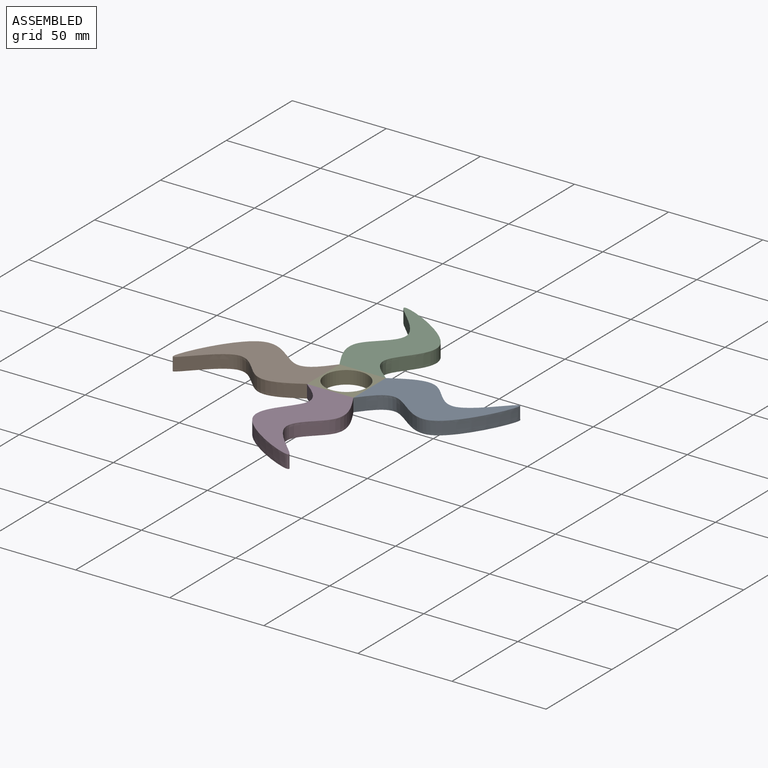
[diagram: assembled view]
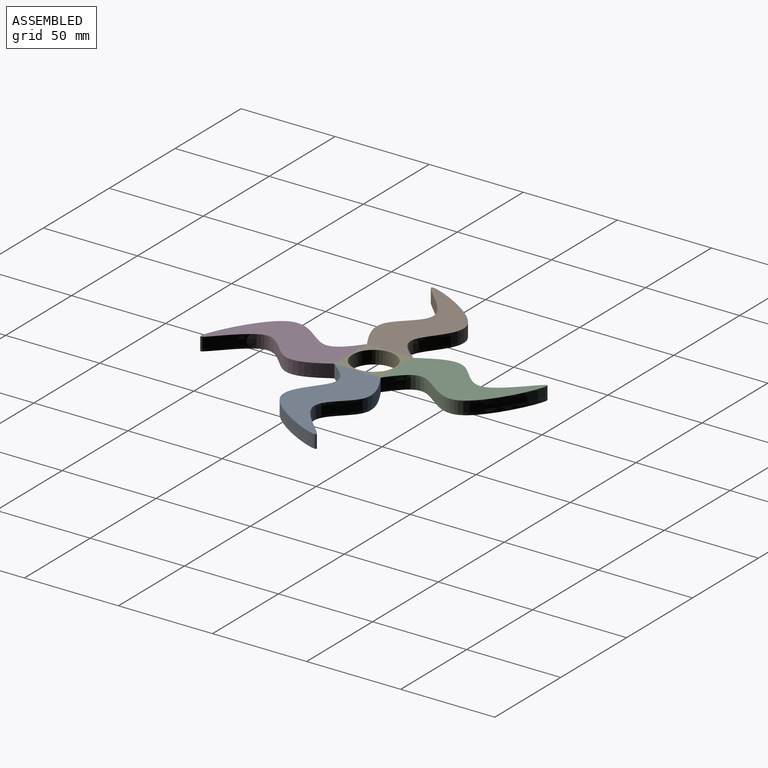
[diagram: assembled view, second angle]
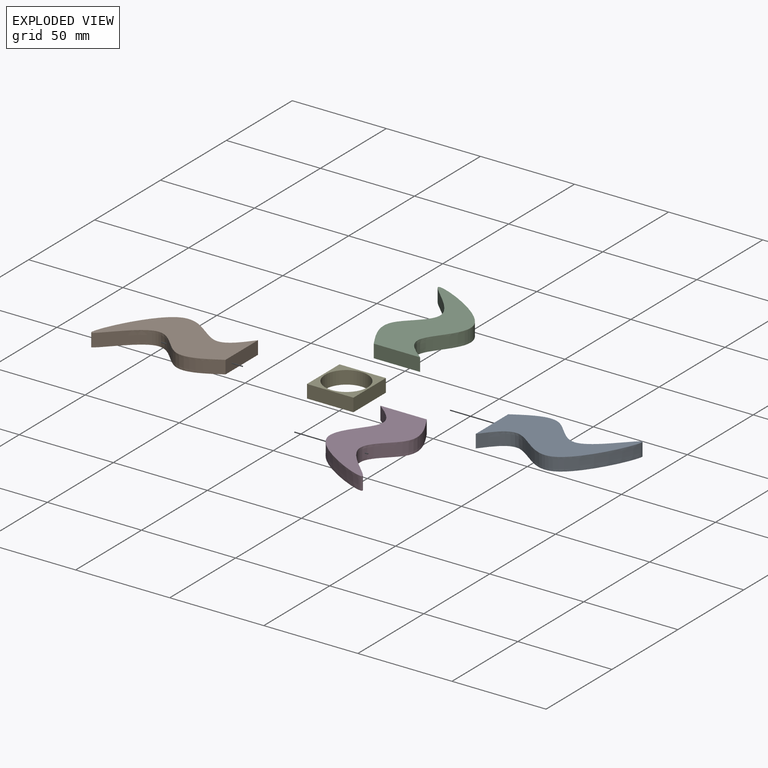
[diagram: exploded view]
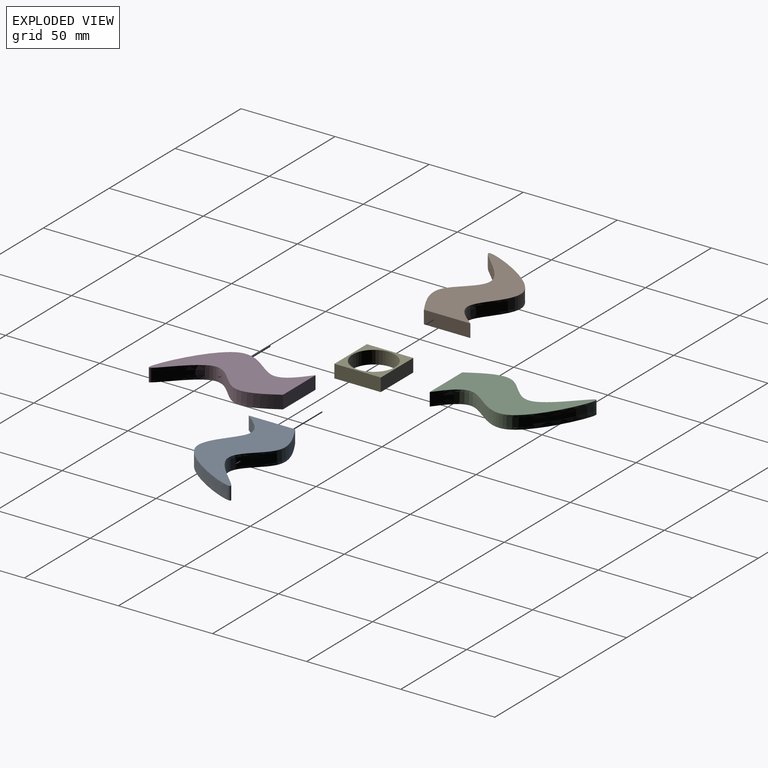
[diagram: exploded view, second angle]
ASSEMBLY  parts=5 mates=3
PART A: 4 faces, bbox 41.3x66.9x7 mm
  f0: plane 24.67x7mm, normal (0,1,0), area 172.7mm2, adj f1,f2,f3
  f1: extruded ~64.22x35.67mm, area 1182.3mm2, adj f0,f2,f3
  f2: plane 66.85x41.3mm, normal (0,0,-1), area 1179.8mm2, adj f0,f1
  f3: plane 66.85x41.3mm, normal (0,0,1), area 1179.8mm2, adj f0,f1
PART B: same geometry as A
PART C: same geometry as A
PART D: same geometry as A
PART E: 7 faces, bbox 24.7x24.7x7 mm
  f0: plane 24.67x7mm, normal (1,0,0), area 172.7mm2, adj f1,f4,f5,f6
  f1: plane 24.67x7mm, normal (0,1,0), area 172.7mm2, adj f0,f2,f5,f6
  f2: plane 24.67x7mm, normal (-1,0,0), area 172.7mm2, adj f1,f4,f5,f6
  f3: cylinder r=11.33mm len=22.67mm, axis (0,0,-1), area 498.5mm2, adj f5,f6
  f4: plane 24.67x7mm, normal (0,-1,0), area 172.7mm2, adj f0,f2,f5,f6
  f5: plane 24.67x24.67mm, normal (0,0,1), area 204.9mm2, adj f0,f1,f2,f3,f4
  f6: plane 24.67x24.67mm, normal (0,0,-1), area 204.9mm2, adj f0,f1,f2,f3,f4
PLACE A rot(axis=(0,0,1),90deg) t=(-40.07,21.32,6.02)mm
PLACE B rot(axis=(0,0,-1),90deg) t=(-64.74,-3.35,6.02)mm
PLACE C rot(axis=(0,0,1),180deg) t=(-64.74,21.32,6.02)mm
PLACE D t=(-40.07,-3.35,6.02)mm
PLACE E t=(-40.07,-3.35,6.02)mm
MATE parallel C.f0 <-> E.f1  axis (0,-1,0) through (-52.41,21.32,9.52)mm
MATE parallel A.f0 <-> E.f0  axis (-1,0,0) through (-40.07,8.98,9.52)mm
MATE parallel B.f0 <-> E.f2  axis (1,0,0) through (-64.74,8.98,9.52)mm
